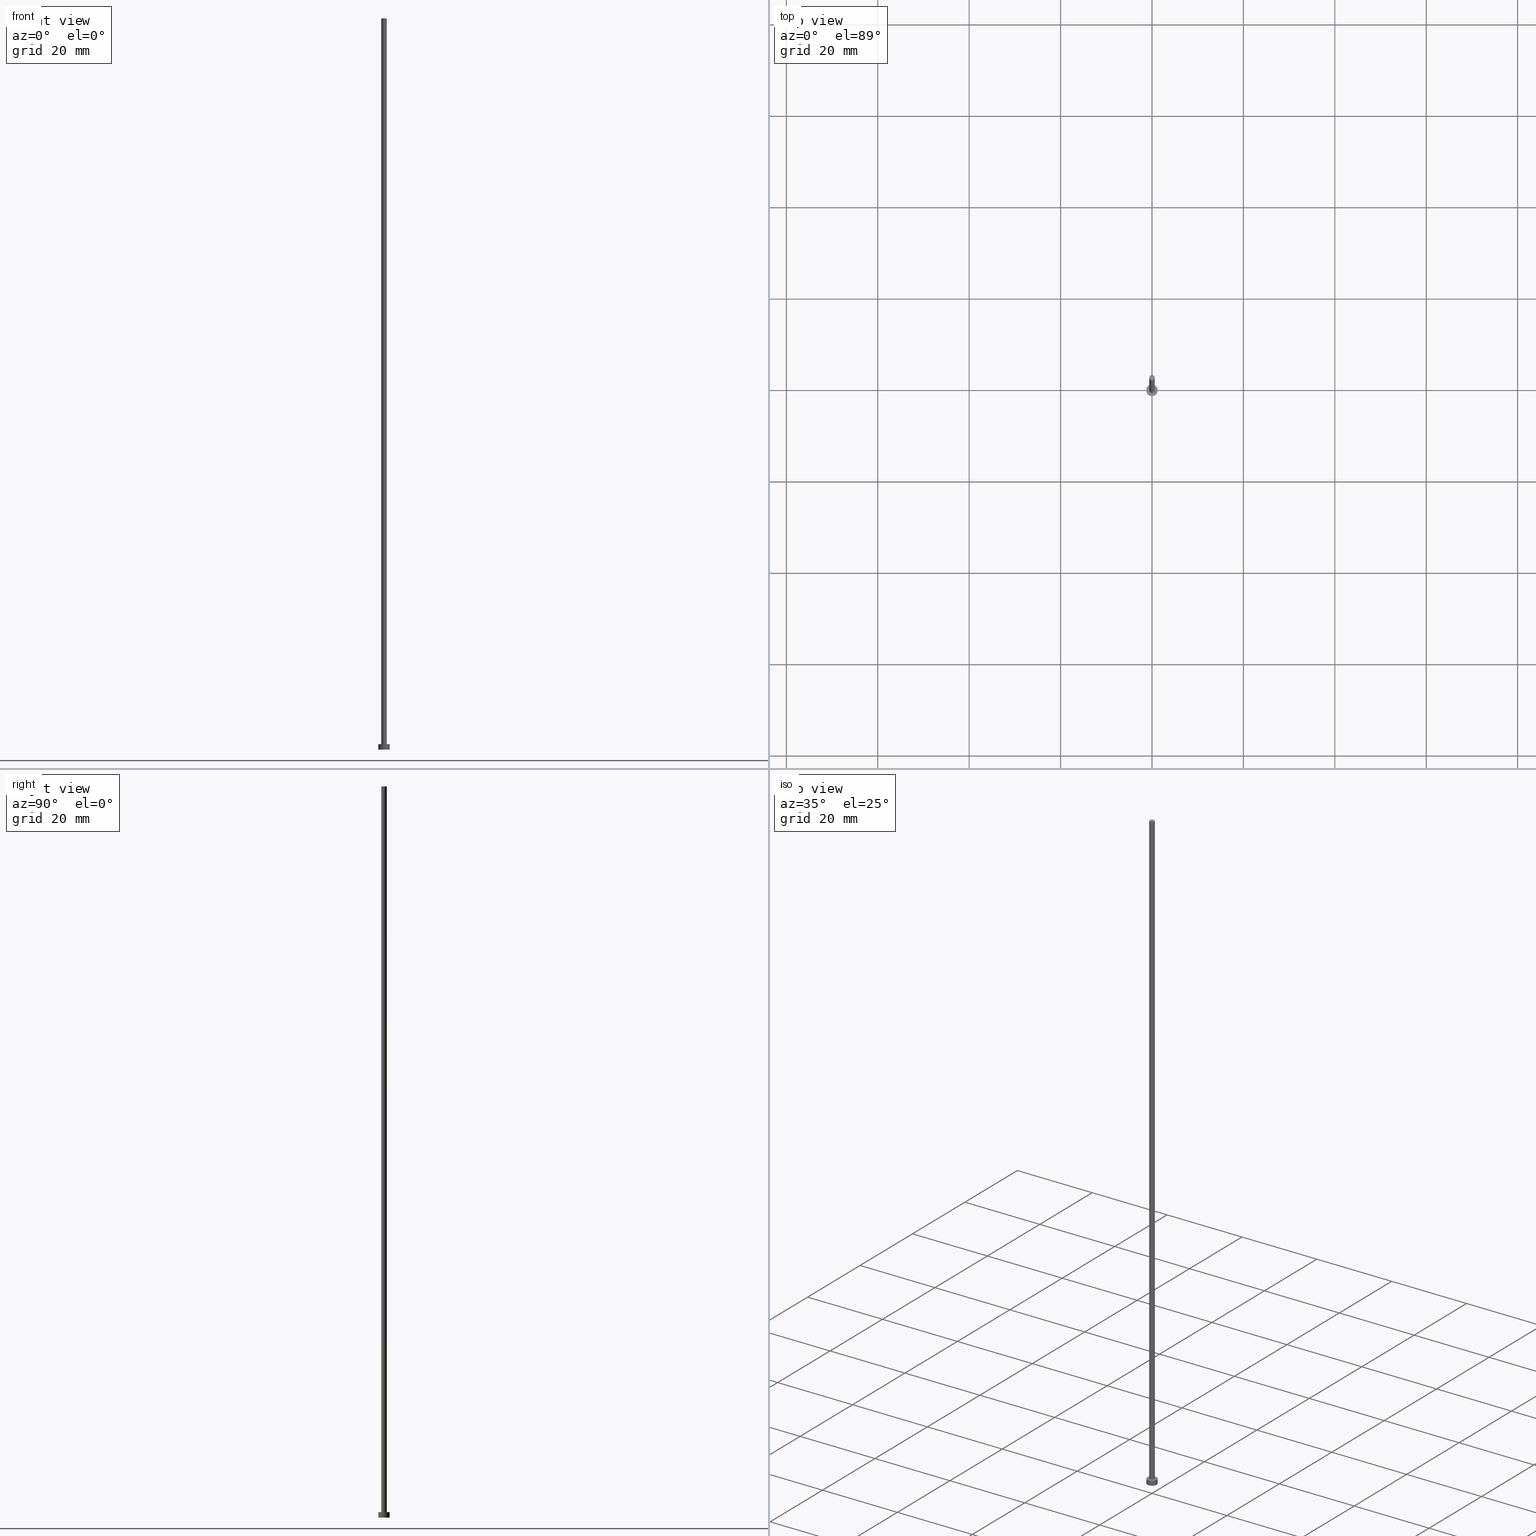
[diagram: canonical four-view strip — front | top / right | iso, engineering-drawing reading convention]
A machine part, canonical four-view strip (front | top / right | iso — engineering-drawing reading convention). The complete STEP part file that produces these views, byte-faithful:
ISO-10303-21;
HEADER;
FILE_DESCRIPTION (( 'STEP AP203' ),
    '1' );
FILE_NAME ('16de.STEP',
    '2023-02-13T15:26:40',
    ( '' ),
    ( '' ),
    'SwSTEP 2.0',
    'SolidWorks 2019',
    '' );
FILE_SCHEMA (( 'CONFIG_CONTROL_DESIGN' ));
ENDSEC;

DATA;
#1 = COORDINATED_UNIVERSAL_TIME_OFFSET ( 1, 0, .AHEAD. ) ;
#2 = FACE_OUTER_BOUND ( 'NONE', #84, .T. ) ;
#3 = AXIS2_PLACEMENT_3D ( 'NONE', #243, #100, #253 ) ;
#4 = DIRECTION ( 'NONE',  ( 1.000000000000000000, 0.000000000000000000, -0.000000000000000000 ) ) ;
#5 = CARTESIAN_POINT ( 'NONE',  ( 0.000000000000000000, 0.000000000000000000, 0.000000000000000000 ) ) ;
#6 = CYLINDRICAL_SURFACE ( 'NONE', #195, 1.250000000000000000 ) ;
#7 = CARTESIAN_POINT ( 'NONE',  ( 1.250000000000000000, 1.530808498934191571E-16, 1.199999999999999956 ) ) ;
#8 = EDGE_CURVE ( 'NONE', #217, #220, #231, .T. ) ;
#9 = AXIS2_PLACEMENT_3D ( 'NONE', #150, #212, #35 ) ;
#10 = CC_DESIGN_PERSON_AND_ORGANIZATION_ASSIGNMENT ( #118, #20, ( #249 ) ) ;
#11 = DIRECTION ( 'NONE',  ( -0.000000000000000000, -0.000000000000000000, -1.000000000000000000 ) ) ;
#12 = ORIENTED_EDGE ( 'NONE', *, *, #208, .T. ) ;
#13 = PRODUCT ( '16de', '16de', '', ( #58 ) ) ;
#14 = CARTESIAN_POINT ( 'NONE',  ( 0.5999999999999999778, 7.347880794884117764E-17, 160.0000000000000284 ) ) ;
#15 = ADVANCED_FACE ( 'NONE', ( #57 ), #147, .T. ) ;
#16 = VECTOR ( 'NONE', #176, 1000.000000000000000 ) ;
#17 = PERSON_AND_ORGANIZATION_ROLE ( 'design_supplier' ) ;
#18 = DATE_TIME_ROLE ( 'classification_date' ) ;
#19 = ORIENTED_EDGE ( 'NONE', *, *, #208, .F. ) ;
#20 = PERSON_AND_ORGANIZATION_ROLE ( 'classification_officer' ) ;
#21 = CARTESIAN_POINT ( 'NONE',  ( 0.000000000000000000, 0.000000000000000000, 160.0000000000000284 ) ) ;
#22 = APPROVAL_STATUS ( 'not_yet_approved' ) ;
#23 = ORIENTED_EDGE ( 'NONE', *, *, #76, .F. ) ;
#24 = EDGE_LOOP ( 'NONE', ( #23, #19, #177, #39 ) ) ;
#25 = DIRECTION ( 'NONE',  ( 0.000000000000000000, 0.000000000000000000, 1.000000000000000000 ) ) ;
#26 = DIRECTION ( 'NONE',  ( 0.000000000000000000, 0.000000000000000000, 1.000000000000000000 ) ) ;
#27 = APPLICATION_CONTEXT ( 'configuration controlled 3d designs of mechanical parts and assemblies' ) ;
#28 = CC_DESIGN_PERSON_AND_ORGANIZATION_ASSIGNMENT ( #37, #202, ( #67 ) ) ;
#29 = DIRECTION ( 'NONE',  ( -0.000000000000000000, -0.000000000000000000, -1.000000000000000000 ) ) ;
#30 = CARTESIAN_POINT ( 'NONE',  ( 1.250000000000000000, 1.530808498934191571E-16, 1.199999999999999956 ) ) ;
#31 = AXIS2_PLACEMENT_3D ( 'NONE', #33, #214, #72 ) ;
#32 = CARTESIAN_POINT ( 'NONE',  ( 0.5999999999999999778, 7.347880794884117764E-17, 160.0000000000000284 ) ) ;
#33 = CARTESIAN_POINT ( 'NONE',  ( 0.000000000000000000, 0.000000000000000000, 160.0000000000000284 ) ) ;
#34 = ORIENTED_EDGE ( 'NONE', *, *, #225, .F. ) ;
#35 = DIRECTION ( 'NONE',  ( -1.000000000000000000, 0.000000000000000000, 0.000000000000000000 ) ) ;
#36 = ADVANCED_FACE ( 'NONE', ( #201, #2 ), #125, .T. ) ;
#37 = PERSON_AND_ORGANIZATION ( #179, #193 ) ;
#38 = CIRCLE ( 'NONE', #190, 1.250000000000000000 ) ;
#39 = ORIENTED_EDGE ( 'NONE', *, *, #120, .T. ) ;
#40 = ADVANCED_FACE ( 'NONE', ( #59 ), #6, .T. ) ;
#41 = APPROVAL_STATUS ( 'not_yet_approved' ) ;
#42 = COORDINATED_UNIVERSAL_TIME_OFFSET ( 1, 0, .AHEAD. ) ;
#43 = ORIENTED_EDGE ( 'NONE', *, *, #8, .F. ) ;
#44 = AXIS2_PLACEMENT_3D ( 'NONE', #171, #227, #209 ) ;
#45 = VERTEX_POINT ( 'NONE', #132 ) ;
#46 = PERSON_AND_ORGANIZATION ( #179, #193 ) ;
#47 = CARTESIAN_POINT ( 'NONE',  ( -0.5999999999999999778, 0.000000000000000000, 1.199999999999999956 ) ) ;
#48 = CARTESIAN_POINT ( 'NONE',  ( -0.5999999999999999778, 0.000000000000000000, 160.0000000000000284 ) ) ;
#49 = ORIENTED_EDGE ( 'NONE', *, *, #126, .F. ) ;
#50 = CC_DESIGN_SECURITY_CLASSIFICATION ( #249, ( #67 ) ) ;
#51 = ORIENTED_EDGE ( 'NONE', *, *, #221, .F. ) ;
#52 = VECTOR ( 'NONE', #248, 1000.000000000000000 ) ;
#53 = ADVANCED_BREP_SHAPE_REPRESENTATION ( '16de', ( #115, #3 ), #170 ) ;
#54 = ORIENTED_EDGE ( 'NONE', *, *, #251, .F. ) ;
#55 = PERSON_AND_ORGANIZATION ( #179, #193 ) ;
#56 = PRODUCT_DEFINITION ( 'NEZN�M�', '', #67, #173 ) ;
#57 = FACE_OUTER_BOUND ( 'NONE', #92, .T. ) ;
#58 = MECHANICAL_CONTEXT ( 'NONE', #169, 'mechanical' ) ;
#59 = FACE_OUTER_BOUND ( 'NONE', #24, .T. ) ;
#60 = DATE_TIME_ROLE ( 'creation_date' ) ;
#61 = LOCAL_TIME ( 16, 26, 40.00000000000000000, #242 ) ;
#62 = APPROVAL_ROLE ( '' ) ;
#63 = DIRECTION ( 'NONE',  ( 0.000000000000000000, 0.000000000000000000, 1.000000000000000000 ) ) ;
#64 = CARTESIAN_POINT ( 'NONE',  ( 0.000000000000000000, 0.000000000000000000, 1.199999999999999956 ) ) ;
#65 = CC_DESIGN_PERSON_AND_ORGANIZATION_ASSIGNMENT ( #46, #160, ( #13 ) ) ;
#66 = CARTESIAN_POINT ( 'NONE',  ( 0.000000000000000000, 0.000000000000000000, 1.199999999999999956 ) ) ;
#67 = PRODUCT_DEFINITION_FORMATION_WITH_SPECIFIED_SOURCE ( 'LIBOVOLN�', '', #13, .NOT_KNOWN. ) ;
#68 = DIRECTION ( 'NONE',  ( 1.000000000000000000, 0.000000000000000000, 0.000000000000000000 ) ) ;
#69 = CLOSED_SHELL ( 'NONE', ( #192, #111, #40, #36, #159, #15, #188 ) ) ;
#70 = ORIENTED_EDGE ( 'NONE', *, *, #197, .F. ) ;
#71 = CC_DESIGN_DATE_AND_TIME_ASSIGNMENT ( #164, #18, ( #249 ) ) ;
#72 = DIRECTION ( 'NONE',  ( 1.000000000000000000, 0.000000000000000000, 0.000000000000000000 ) ) ;
#73 = PRODUCT_DEFINITION_SHAPE ( 'NONE', 'NONE',  #56 ) ;
#74 = DIRECTION ( 'NONE',  ( 1.000000000000000000, 0.000000000000000000, 0.000000000000000000 ) ) ;
#75 = VERTEX_POINT ( 'NONE', #131 ) ;
#76 = EDGE_CURVE ( 'NONE', #163, #138, #205, .T. ) ;
#77 = LOCAL_TIME ( 16, 26, 40.00000000000000000, #1 ) ;
#78 = CALENDAR_DATE ( 2023, 13, 2 ) ;
#79 = ORIENTED_EDGE ( 'NONE', *, *, #97, .F. ) ;
#80 = CALENDAR_DATE ( 2023, 13, 2 ) ;
#81 = APPROVAL_DATE_TIME ( #178, #114 ) ;
#82 = ORIENTED_EDGE ( 'NONE', *, *, #120, .F. ) ;
#83 = PRODUCT_RELATED_PRODUCT_CATEGORY ( 'detail', '', ( #13 ) ) ;
#84 = EDGE_LOOP ( 'NONE', ( #12, #137 ) ) ;
#85 = CC_DESIGN_APPROVAL ( #114, ( #56 ) ) ;
#86 = CARTESIAN_POINT ( 'NONE',  ( 1.250000000000000000, 1.530808498934191571E-16, 0.000000000000000000 ) ) ;
#87 = DIRECTION ( 'NONE',  ( -1.000000000000000000, 0.000000000000000000, 0.000000000000000000 ) ) ;
#88 = AXIS2_PLACEMENT_3D ( 'NONE', #245, #246, #105 ) ;
#89 = CARTESIAN_POINT ( 'NONE',  ( 0.000000000000000000, 0.000000000000000000, 1.199999999999999956 ) ) ;
#90 = DIRECTION ( 'NONE',  ( 1.000000000000000000, 0.000000000000000000, 0.000000000000000000 ) ) ;
#91 =( LENGTH_UNIT ( ) NAMED_UNIT ( * ) SI_UNIT ( .MILLI., .METRE. ) );
#92 = EDGE_LOOP ( 'NONE', ( #70, #43, #182, #233 ) ) ;
#93 = APPLICATION_PROTOCOL_DEFINITION ( 'international standard', 'config_control_design', 1994, #169 ) ;
#94 = LINE ( 'NONE', #14, #235 ) ;
#95 = LOCAL_TIME ( 16, 26, 40.00000000000000000, #185 ) ;
#96 = CARTESIAN_POINT ( 'NONE',  ( 0.000000000000000000, 0.000000000000000000, 1.199999999999999956 ) ) ;
#97 = EDGE_CURVE ( 'NONE', #45, #184, #226, .T. ) ;
#98 = PERSON_AND_ORGANIZATION ( #179, #193 ) ;
#99 = AXIS2_PLACEMENT_3D ( 'NONE', #5, #108, #148 ) ;
#100 = DIRECTION ( 'NONE',  ( 0.000000000000000000, 0.000000000000000000, 1.000000000000000000 ) ) ;
#101 = PERSON_AND_ORGANIZATION_ROLE ( 'creator' ) ;
#102 = APPROVAL_PERSON_ORGANIZATION ( #98, #229, #141 ) ;
#103 = DIRECTION ( 'NONE',  ( 0.000000000000000000, 0.000000000000000000, 1.000000000000000000 ) ) ;
#104 = EDGE_CURVE ( 'NONE', #184, #45, #133, .T. ) ;
#105 = DIRECTION ( 'NONE',  ( 1.000000000000000000, 0.000000000000000000, -0.000000000000000000 ) ) ;
#106 = DIRECTION ( 'NONE',  ( -0.000000000000000000, -0.000000000000000000, -1.000000000000000000 ) ) ;
#107 = APPROVAL_PERSON_ORGANIZATION ( #200, #114, #240 ) ;
#108 = DIRECTION ( 'NONE',  ( 0.000000000000000000, 0.000000000000000000, 1.000000000000000000 ) ) ;
#109 = APPROVAL ( #237, 'NEUR�EN�' ) ;
#110 = FACE_OUTER_BOUND ( 'NONE', #154, .T. ) ;
#111 = ADVANCED_FACE ( 'NONE', ( #110 ), #149, .T. ) ;
#112 = AXIS2_PLACEMENT_3D ( 'NONE', #124, #63, #142 ) ;
#113 = ORIENTED_EDGE ( 'NONE', *, *, #204, .F. ) ;
#114 = APPROVAL ( #22, 'NEUR�EN�' ) ;
#115 = MANIFOLD_SOLID_BREP ( 'P�idat vysunut�m3', #69 ) ;
#116 = AXIS2_PLACEMENT_3D ( 'NONE', #161, #103, #4 ) ;
#117 = APPROVAL_DATE_TIME ( #239, #109 ) ;
#118 = PERSON_AND_ORGANIZATION ( #179, #193 ) ;
#119 = UNCERTAINTY_MEASURE_WITH_UNIT (LENGTH_MEASURE( 1.000000000000000082E-05 ), #91, 'distance_accuracy_value', 'NONE');
#120 = EDGE_CURVE ( 'NONE', #144, #138, #153, .T. ) ;
#121 = APPLICATION_PROTOCOL_DEFINITION ( 'international standard', 'config_control_design', 1994, #27 ) ;
#122 = ORIENTED_EDGE ( 'NONE', *, *, #221, .T. ) ;
#123 = AXIS2_PLACEMENT_3D ( 'NONE', #21, #165, #224 ) ;
#124 = CARTESIAN_POINT ( 'NONE',  ( 0.000000000000000000, 0.000000000000000000, 160.0000000000000284 ) ) ;
#125 = PLANE ( 'NONE',  #116 ) ;
#126 = EDGE_CURVE ( 'NONE', #163, #75, #167, .T. ) ;
#127 = CARTESIAN_POINT ( 'NONE',  ( 0.000000000000000000, 0.000000000000000000, 1.199999999999999956 ) ) ;
#128 = PLANE ( 'NONE',  #44 ) ;
#129 = CC_DESIGN_PERSON_AND_ORGANIZATION_ASSIGNMENT ( #219, #17, ( #67 ) ) ;
#130 = LOCAL_TIME ( 16, 26, 40.00000000000000000, #42 ) ;
#131 = CARTESIAN_POINT ( 'NONE',  ( -1.250000000000000000, 0.000000000000000000, 1.199999999999999956 ) ) ;
#132 = CARTESIAN_POINT ( 'NONE',  ( 0.5999999999999999778, 7.347880794884117764E-17, 1.199999999999999956 ) ) ;
#133 = CIRCLE ( 'NONE', #244, 0.5999999999999999778 ) ;
#134 = CARTESIAN_POINT ( 'NONE',  ( 0.000000000000000000, 0.000000000000000000, 0.000000000000000000 ) ) ;
#135 = CARTESIAN_POINT ( 'NONE',  ( -1.250000000000000000, 0.000000000000000000, 1.199999999999999956 ) ) ;
#136 = EDGE_LOOP ( 'NONE', ( #252, #79 ) ) ;
#137 = ORIENTED_EDGE ( 'NONE', *, *, #126, .T. ) ;
#138 = VERTEX_POINT ( 'NONE', #86 ) ;
#139 = APPROVAL_PERSON_ORGANIZATION ( #55, #109, #62 ) ;
#140 = CALENDAR_DATE ( 2023, 13, 2 ) ;
#141 = APPROVAL_ROLE ( '' ) ;
#142 = DIRECTION ( 'NONE',  ( 1.000000000000000000, 0.000000000000000000, 0.000000000000000000 ) ) ;
#143 = DATE_AND_TIME ( #140, #95 ) ;
#144 = VERTEX_POINT ( 'NONE', #206 ) ;
#145 = SHAPE_DEFINITION_REPRESENTATION ( #73, #53 ) ;
#146 = CIRCLE ( 'NONE', #31, 0.5999999999999999778 ) ;
#147 = CYLINDRICAL_SURFACE ( 'NONE', #123, 0.5999999999999999778 ) ;
#148 = DIRECTION ( 'NONE',  ( 1.000000000000000000, 0.000000000000000000, 0.000000000000000000 ) ) ;
#149 = CYLINDRICAL_SURFACE ( 'NONE', #215, 1.250000000000000000 ) ;
#150 = CARTESIAN_POINT ( 'NONE',  ( 0.000000000000000000, 0.000000000000000000, 160.0000000000000284 ) ) ;
#151 = DIRECTION ( 'NONE',  ( -1.000000000000000000, 0.000000000000000000, 0.000000000000000000 ) ) ;
#152 = CC_DESIGN_PERSON_AND_ORGANIZATION_ASSIGNMENT ( #162, #101, ( #56 ) ) ;
#153 = CIRCLE ( 'NONE', #99, 1.250000000000000000 ) ;
#154 = EDGE_LOOP ( 'NONE', ( #49, #156, #122, #34 ) ) ;
#155 = LINE ( 'NONE', #135, #16 ) ;
#156 = ORIENTED_EDGE ( 'NONE', *, *, #76, .T. ) ;
#157 =( NAMED_UNIT ( * ) PLANE_ANGLE_UNIT ( ) SI_UNIT ( $, .RADIAN. ) );
#158 = VECTOR ( 'NONE', #232, 1000.000000000000000 ) ;
#159 = ADVANCED_FACE ( 'NONE', ( #230 ), #128, .F. ) ;
#160 = PERSON_AND_ORGANIZATION_ROLE ( 'design_owner' ) ;
#161 = CARTESIAN_POINT ( 'NONE',  ( 0.000000000000000000, 0.000000000000000000, 1.199999999999999956 ) ) ;
#162 = PERSON_AND_ORGANIZATION ( #179, #193 ) ;
#163 = VERTEX_POINT ( 'NONE', #30 ) ;
#164 = DATE_AND_TIME ( #198, #130 ) ;
#165 = DIRECTION ( 'NONE',  ( -0.000000000000000000, -0.000000000000000000, -1.000000000000000000 ) ) ;
#166 = ORIENTED_EDGE ( 'NONE', *, *, #8, .T. ) ;
#167 = CIRCLE ( 'NONE', #247, 1.250000000000000000 ) ;
#168 = CYLINDRICAL_SURFACE ( 'NONE', #9, 0.5999999999999999778 ) ;
#169 = APPLICATION_CONTEXT ( 'configuration controlled 3d designs of mechanical parts and assemblies' ) ;
#170 =( GEOMETRIC_REPRESENTATION_CONTEXT ( 3 ) GLOBAL_UNCERTAINTY_ASSIGNED_CONTEXT ( ( #119 ) ) GLOBAL_UNIT_ASSIGNED_CONTEXT ( ( #91, #157, #194 ) ) REPRESENTATION_CONTEXT ( 'NONE', 'WORKASPACE' ) );
#171 = CARTESIAN_POINT ( 'NONE',  ( 0.000000000000000000, 0.000000000000000000, 0.000000000000000000 ) ) ;
#172 = CARTESIAN_POINT ( 'NONE',  ( 0.000000000000000000, 0.000000000000000000, 1.199999999999999956 ) ) ;
#173 = DESIGN_CONTEXT ( 'detailed design', #27, 'design' ) ;
#174 = CC_DESIGN_APPROVAL ( #109, ( #249 ) ) ;
#175 = CC_DESIGN_DATE_AND_TIME_ASSIGNMENT ( #180, #60, ( #56 ) ) ;
#176 = DIRECTION ( 'NONE',  ( -0.000000000000000000, -0.000000000000000000, -1.000000000000000000 ) ) ;
#177 = ORIENTED_EDGE ( 'NONE', *, *, #225, .T. ) ;
#178 = DATE_AND_TIME ( #80, #238 ) ;
#179 = PERSON ( 'NEUR�EN�', 'NEUR�EN�', 'NEUR�EN�', ('NEUR�EN�'), ('NEUR�EN�'), ('NEUR�EN�') ) ;
#180 = DATE_AND_TIME ( #183, #61 ) ;
#181 = ORIENTED_EDGE ( 'NONE', *, *, #97, .T. ) ;
#182 = ORIENTED_EDGE ( 'NONE', *, *, #204, .T. ) ;
#183 = CALENDAR_DATE ( 2023, 13, 2 ) ;
#184 = VERTEX_POINT ( 'NONE', #47 ) ;
#185 = COORDINATED_UNIVERSAL_TIME_OFFSET ( 1, 0, .AHEAD. ) ;
#186 = CIRCLE ( 'NONE', #223, 1.250000000000000000 ) ;
#187 = FACE_OUTER_BOUND ( 'NONE', #255, .T. ) ;
#188 = ADVANCED_FACE ( 'NONE', ( #191 ), #210, .T. ) ;
#189 = DIRECTION ( 'NONE',  ( 1.000000000000000000, 0.000000000000000000, 0.000000000000000000 ) ) ;
#190 = AXIS2_PLACEMENT_3D ( 'NONE', #96, #250, #74 ) ;
#191 = FACE_OUTER_BOUND ( 'NONE', #241, .T. ) ;
#192 = ADVANCED_FACE ( 'NONE', ( #187 ), #168, .T. ) ;
#193 = ORGANIZATION ( 'NEUR�EN�', 'NEUR�EN�', '' ) ;
#194 =( NAMED_UNIT ( * ) SI_UNIT ( $, .STERADIAN. ) SOLID_ANGLE_UNIT ( ) );
#195 = AXIS2_PLACEMENT_3D ( 'NONE', #64, #29, #87 ) ;
#196 = LINE ( 'NONE', #211, #158 ) ;
#197 = EDGE_CURVE ( 'NONE', #220, #45, #94, .T. ) ;
#198 = CALENDAR_DATE ( 2023, 13, 2 ) ;
#199 = AXIS2_PLACEMENT_3D ( 'NONE', #89, #25, #203 ) ;
#200 = PERSON_AND_ORGANIZATION ( #179, #193 ) ;
#201 = FACE_BOUND ( 'NONE', #136, .T. ) ;
#202 = PERSON_AND_ORGANIZATION_ROLE ( 'creator' ) ;
#203 = DIRECTION ( 'NONE',  ( 1.000000000000000000, 0.000000000000000000, 0.000000000000000000 ) ) ;
#204 = EDGE_CURVE ( 'NONE', #217, #184, #196, .T. ) ;
#205 = LINE ( 'NONE', #7, #52 ) ;
#206 = CARTESIAN_POINT ( 'NONE',  ( -1.250000000000000000, 0.000000000000000000, 0.000000000000000000 ) ) ;
#207 = CC_DESIGN_APPROVAL ( #229, ( #67 ) ) ;
#208 = EDGE_CURVE ( 'NONE', #75, #163, #38, .T. ) ;
#209 = DIRECTION ( 'NONE',  ( 1.000000000000000000, 0.000000000000000000, -0.000000000000000000 ) ) ;
#210 = PLANE ( 'NONE',  #88 ) ;
#211 = CARTESIAN_POINT ( 'NONE',  ( -0.5999999999999999778, 0.000000000000000000, 160.0000000000000284 ) ) ;
#212 = DIRECTION ( 'NONE',  ( -0.000000000000000000, -0.000000000000000000, -1.000000000000000000 ) ) ;
#213 = EDGE_LOOP ( 'NONE', ( #82, #51 ) ) ;
#214 = DIRECTION ( 'NONE',  ( 0.000000000000000000, 0.000000000000000000, 1.000000000000000000 ) ) ;
#215 = AXIS2_PLACEMENT_3D ( 'NONE', #172, #106, #151 ) ;
#216 = DIRECTION ( 'NONE',  ( 0.000000000000000000, 0.000000000000000000, 1.000000000000000000 ) ) ;
#217 = VERTEX_POINT ( 'NONE', #48 ) ;
#218 = SECURITY_CLASSIFICATION_LEVEL ( 'unclassified' ) ;
#219 = PERSON_AND_ORGANIZATION ( #179, #193 ) ;
#220 = VERTEX_POINT ( 'NONE', #32 ) ;
#221 = EDGE_CURVE ( 'NONE', #138, #144, #186, .T. ) ;
#222 = APPROVAL_DATE_TIME ( #143, #229 ) ;
#223 = AXIS2_PLACEMENT_3D ( 'NONE', #134, #216, #68 ) ;
#224 = DIRECTION ( 'NONE',  ( -1.000000000000000000, 0.000000000000000000, 0.000000000000000000 ) ) ;
#225 = EDGE_CURVE ( 'NONE', #75, #144, #155, .T. ) ;
#226 = CIRCLE ( 'NONE', #199, 0.5999999999999999778 ) ;
#227 = DIRECTION ( 'NONE',  ( 0.000000000000000000, 0.000000000000000000, 1.000000000000000000 ) ) ;
#228 = DIRECTION ( 'NONE',  ( 0.000000000000000000, 0.000000000000000000, 1.000000000000000000 ) ) ;
#229 = APPROVAL ( #41, 'NEUR�EN�' ) ;
#230 = FACE_OUTER_BOUND ( 'NONE', #213, .T. ) ;
#231 = CIRCLE ( 'NONE', #112, 0.5999999999999999778 ) ;
#232 = DIRECTION ( 'NONE',  ( -0.000000000000000000, -0.000000000000000000, -1.000000000000000000 ) ) ;
#233 = ORIENTED_EDGE ( 'NONE', *, *, #104, .T. ) ;
#234 = ORIENTED_EDGE ( 'NONE', *, *, #197, .T. ) ;
#235 = VECTOR ( 'NONE', #11, 1000.000000000000000 ) ;
#236 = ORIENTED_EDGE ( 'NONE', *, *, #251, .T. ) ;
#237 = APPROVAL_STATUS ( 'not_yet_approved' ) ;
#238 = LOCAL_TIME ( 16, 26, 40.00000000000000000, #254 ) ;
#239 = DATE_AND_TIME ( #78, #77 ) ;
#240 = APPROVAL_ROLE ( '' ) ;
#241 = EDGE_LOOP ( 'NONE', ( #166, #236 ) ) ;
#242 = COORDINATED_UNIVERSAL_TIME_OFFSET ( 1, 0, .AHEAD. ) ;
#243 = CARTESIAN_POINT ( 'NONE',  ( 0.000000000000000000, 0.000000000000000000, 0.000000000000000000 ) ) ;
#244 = AXIS2_PLACEMENT_3D ( 'NONE', #127, #26, #90 ) ;
#245 = CARTESIAN_POINT ( 'NONE',  ( 0.000000000000000000, 0.000000000000000000, 160.0000000000000284 ) ) ;
#246 = DIRECTION ( 'NONE',  ( 0.000000000000000000, 0.000000000000000000, 1.000000000000000000 ) ) ;
#247 = AXIS2_PLACEMENT_3D ( 'NONE', #66, #228, #189 ) ;
#248 = DIRECTION ( 'NONE',  ( -0.000000000000000000, -0.000000000000000000, -1.000000000000000000 ) ) ;
#249 = SECURITY_CLASSIFICATION ( '', '', #218 ) ;
#250 = DIRECTION ( 'NONE',  ( 0.000000000000000000, 0.000000000000000000, 1.000000000000000000 ) ) ;
#251 = EDGE_CURVE ( 'NONE', #220, #217, #146, .T. ) ;
#252 = ORIENTED_EDGE ( 'NONE', *, *, #104, .F. ) ;
#253 = DIRECTION ( 'NONE',  ( 1.000000000000000000, 0.000000000000000000, 0.000000000000000000 ) ) ;
#254 = COORDINATED_UNIVERSAL_TIME_OFFSET ( 1, 0, .AHEAD. ) ;
#255 = EDGE_LOOP ( 'NONE', ( #54, #234, #181, #113 ) ) ;
ENDSEC;
END-ISO-10303-21;
